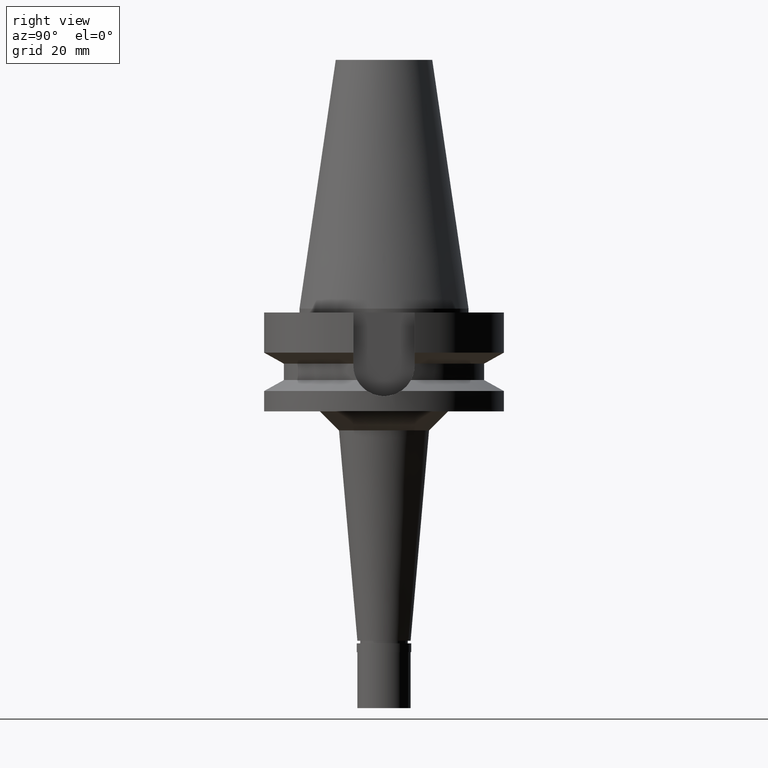
[diagram: clean part render]
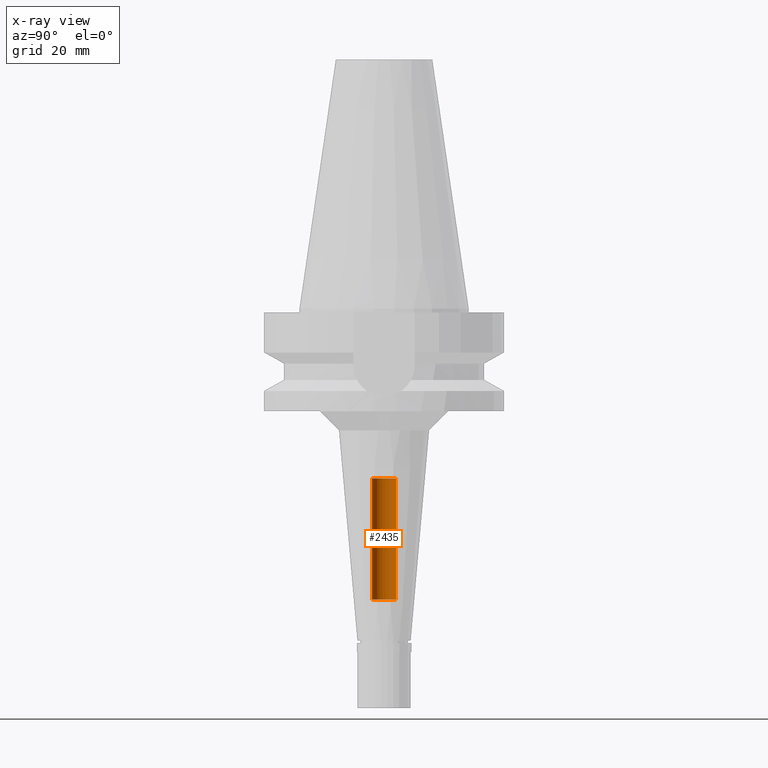
[diagram: x-ray — body ghosted, one internal face saturated and labeled with its STEP entity id]
A machine part, right view, then the same camera in x-ray: the body is ghosted and one INTERNAL B-rep face — a face not visible from any outside direction — is saturated and labeled: STEP entity #2435.
In plain terms, the highlighted cylindrical surface (edge-blend (fillet) strip) has radius 3.2 mm, axis along (0, 0, -1).
Its self-contained STEP definition (entity closure, byte-faithful):
#75 = CARTESIAN_POINT ( 'NONE',  ( 0.0000000000000000000, 3.200000000000000178, -76.50000000000000000 ) ) ;
#139 = CARTESIAN_POINT ( 'NONE',  ( 0.0000000000000000000, 2.127456419478999887E-14, 73.71999999999999886 ) ) ;
#146 = VERTEX_POINT ( 'NONE', #2406 ) ;
#232 = EDGE_CURVE ( 'NONE', #146, #1337, #1815, .T. ) ;
#278 = ORIENTED_EDGE ( 'NONE', *, *, #389, .T. ) ;
#389 = EDGE_CURVE ( 'NONE', #2361, #146, #1602, .T. ) ;
#410 = DIRECTION ( 'NONE',  ( 0.0000000000000000000, 1.000000000000000000, 0.0000000000000000000 ) ) ;
#424 = DIRECTION ( 'NONE',  ( 0.0000000000000000000, -1.000000000000000000, 0.0000000000000000000 ) ) ;
#443 = DIRECTION ( 'NONE',  ( 0.0000000000000000000, 0.0000000000000000000, 1.000000000000000000 ) ) ;
#457 = DIRECTION ( 'NONE',  ( 0.0000000000000000000, 0.0000000000000000000, -1.000000000000000000 ) ) ;
#470 = DIRECTION ( 'NONE',  ( 0.0000000000000000000, 0.0000000000000000000, 1.000000000000000000 ) ) ;
#537 = DIRECTION ( 'NONE',  ( 0.0000000000000000000, 0.0000000000000000000, 1.000000000000000000 ) ) ;
#686 = VECTOR ( 'NONE', #537, 1000.000000000000000 ) ;
#914 = VECTOR ( 'NONE', #470, 1000.000000000000000 ) ;
#1021 = EDGE_CURVE ( 'NONE', #1457, #1337, #2583, .T. ) ;
#1072 = DIRECTION ( 'NONE',  ( 0.0000000000000000000, -1.000000000000000000, 0.0000000000000000000 ) ) ;
#1264 = CARTESIAN_POINT ( 'NONE',  ( 0.0000000000000000000, -3.200000000000000178, -76.50000000000000000 ) ) ;
#1280 = AXIS2_PLACEMENT_3D ( 'NONE', #2490, #443, #410 ) ;
#1337 = VERTEX_POINT ( 'NONE', #1513 ) ;
#1343 = CARTESIAN_POINT ( 'NONE',  ( 0.0000000000000000000, 2.127456419478999887E-14, -76.50000000000000000 ) ) ;
#1370 = CARTESIAN_POINT ( 'NONE',  ( 0.0000000000000000000, 3.200000000000000178, -76.50000000000000000 ) ) ;
#1457 = VERTEX_POINT ( 'NONE', #1264 ) ;
#1464 = CARTESIAN_POINT ( 'NONE',  ( 0.0000000000000000000, -3.200000000000000178, -76.50000000000000000 ) ) ;
#1513 = CARTESIAN_POINT ( 'NONE',  ( 0.0000000000000000000, -3.200000000000000178, -44.60000000000000142 ) ) ;
#1529 = AXIS2_PLACEMENT_3D ( 'NONE', #1343, #457, #424 ) ;
#1568 = ORIENTED_EDGE ( 'NONE', *, *, #232, .T. ) ;
#1602 = LINE ( 'NONE', #1370, #914 ) ;
#1787 = ORIENTED_EDGE ( 'NONE', *, *, #1021, .F. ) ;
#1815 = CIRCLE ( 'NONE', #1280, 3.200000000000000178 ) ;
#2006 = CIRCLE ( 'NONE', #1529, 3.200000000000000178 ) ;
#2201 = EDGE_LOOP ( 'NONE', ( #1568, #1787, #2894, #278 ) ) ;
#2213 = CYLINDRICAL_SURFACE ( 'NONE', #2827, 3.200000000000000178 ) ;
#2361 = VERTEX_POINT ( 'NONE', #75 ) ;
#2403 = FACE_OUTER_BOUND ( 'NONE', #2201, .T. ) ;
#2406 = CARTESIAN_POINT ( 'NONE',  ( 0.0000000000000000000, 3.200000000000000178, -44.60000000000000142 ) ) ;
#2435 = ADVANCED_FACE ( 'NONE', ( #2403 ), #2213, .F. ) ;
#2490 = CARTESIAN_POINT ( 'NONE',  ( 0.0000000000000000000, 2.127456419478999887E-14, -44.60000000000000142 ) ) ;
#2583 = LINE ( 'NONE', #1464, #686 ) ;
#2602 = EDGE_CURVE ( 'NONE', #1457, #2361, #2006, .T. ) ;
#2653 = DIRECTION ( 'NONE',  ( 0.0000000000000000000, 0.0000000000000000000, -1.000000000000000000 ) ) ;
#2827 = AXIS2_PLACEMENT_3D ( 'NONE', #139, #2653, #1072 ) ;
#2894 = ORIENTED_EDGE ( 'NONE', *, *, #2602, .T. ) ;